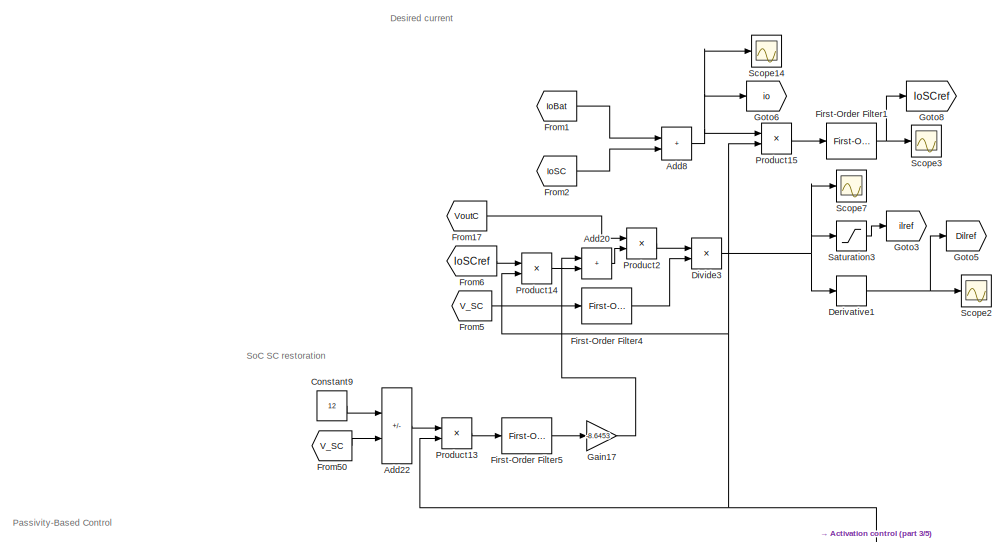
[diagram: root canvas - part 1/5, top center region]
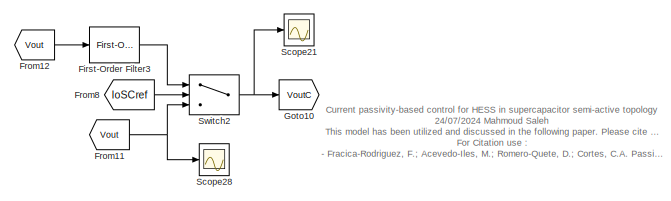
[diagram: root canvas - part 2/5, top right region]
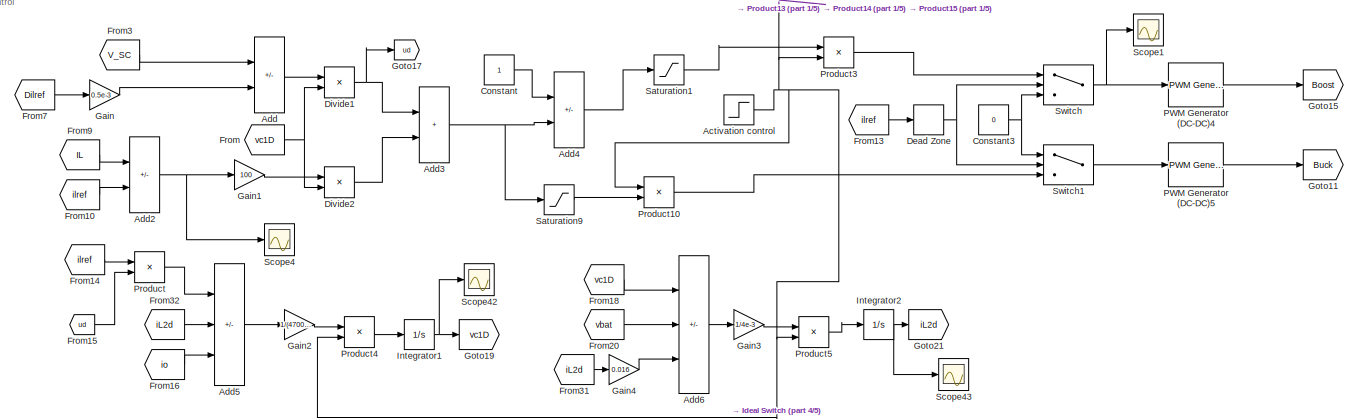
[diagram: root canvas - part 3/5, central region]
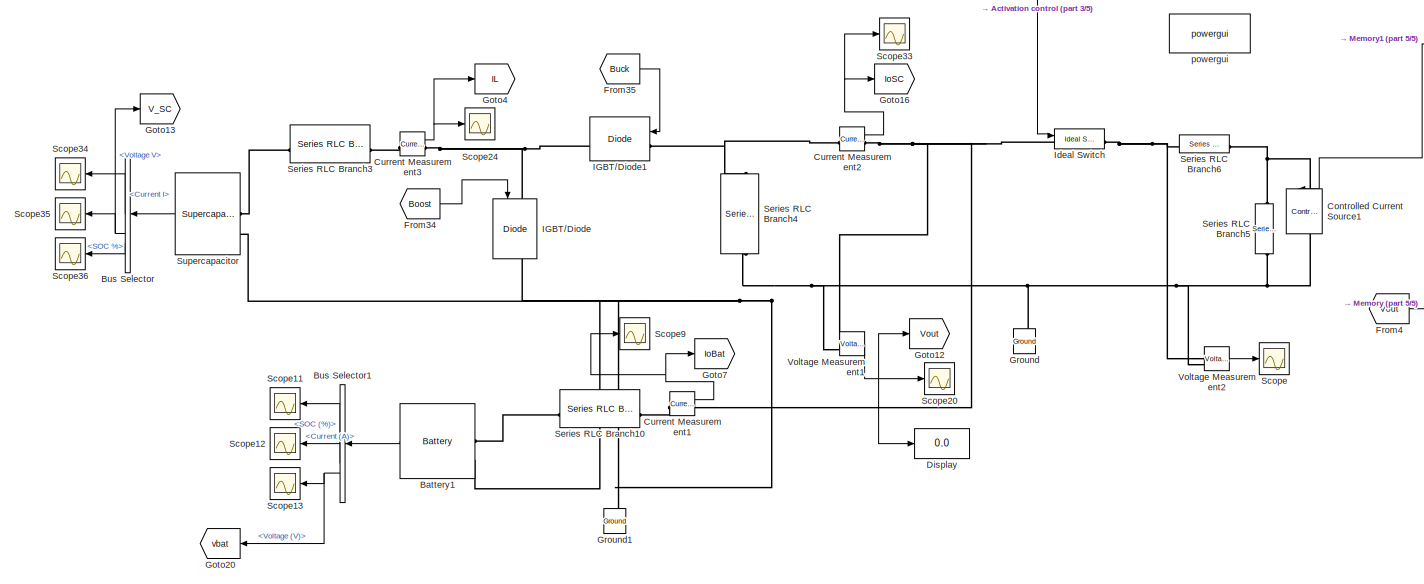
[diagram: root canvas - part 4/5, bottom center region]
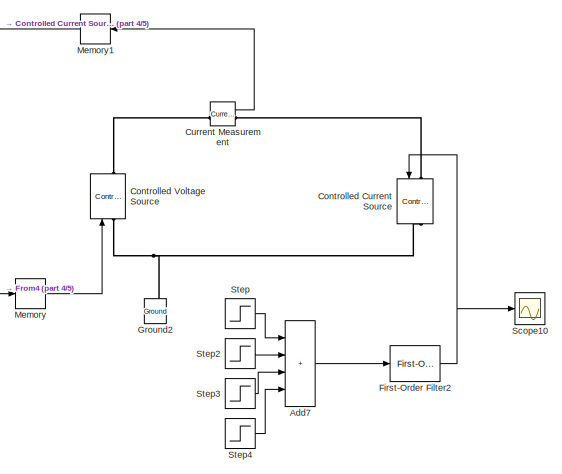
[diagram: root canvas - part 5/5, bottom right region]
MODEL slx_d5343354e432
KIND model
CONFIG AbsTol = auto
CONFIG EnableMultiTasking = off
CONFIG FixedStep = 1/350000
CONFIG MaxStep = auto
CONFIG MinStep = auto
CONFIG RelTol = 1e-3
CONFIG SampleTimeConstraint = Unconstrained
CONFIG SolverName = ode4
CONFIG StartTime = 0.0
CONFIG StopTime = 10.0
BLOCK [Step] Activation control
  SampleTime = 0
  Time = 3
BLOCK [Sum] Add
  IconShape = rectangular
  Inputs = +-
BLOCK [Sum] Add2
  IconShape = rectangular
  Inputs = +-
BLOCK [Sum] Add20
  IconShape = rectangular
BLOCK [Sum] Add22
  IconShape = rectangular
  Inputs = +-
BLOCK [Sum] Add3
  IconShape = rectangular
BLOCK [Sum] Add4
  IconShape = rectangular
  Inputs = +-
BLOCK [Sum] Add5
  IconShape = rectangular
  Inputs = +--
BLOCK [Sum] Add6
  IconShape = rectangular
  Inputs = +--
BLOCK [Sum] Add7
  IconShape = rectangular
  Inputs = ++++
BLOCK [Sum] Add8
  IconShape = rectangular
BLOCK [Reference] Battery1  REF=spsBatteryLib/Battery
  LibrarySourceBlock = sps_lib/Sources/Battery
  SourceBlock = spsBatteryLib/Battery
  SourceType = Battery
BLOCK [BusSelector] Bus Selector
  OutputSignals = Current I,Voltage V,SOC %
BLOCK [BusSelector] Bus Selector1
  OutputSignals = SOC (%),Current (A),Voltage (V)
BLOCK [Constant] Constant
BLOCK [Constant] Constant3
  Value = 0
BLOCK [Constant] Constant9
  Value = 12
BLOCK [Reference] Controlled Current Source  REF=spsControlledCurrentSourceLib/Controlled Current Source
  LibrarySourceBlock = sps_lib/Sources/Controlled Current Source
  SourceBlock = spsControlledCurrentSourceLib/Controlled Current Source
  SourceType = Controlled Current Source
BLOCK [Reference] Controlled Current Source1  REF=spsControlledCurrentSourceLib/Controlled Current Source
  LibrarySourceBlock = sps_lib/Sources/Controlled Current Source
  SourceBlock = spsControlledCurrentSourceLib/Controlled Current Source
  SourceType = Controlled Current Source
BLOCK [Reference] Controlled Voltage Source  REF=spsControlledVoltageSourceLib/Controlled Voltage Source
  LibrarySourceBlock = sps_lib/Sources/Controlled Voltage Source
  SourceBlock = spsControlledVoltageSourceLib/Controlled Voltage Source
  SourceType = Controlled Voltage Source
BLOCK [Reference] Current Measurement  REF=spsCurrentMeasurementLib/Current Measurement
  LibrarySourceBlock = sps_lib/Sensors and Measurements/Current Measurement
  SourceBlock = spsCurrentMeasurementLib/Current Measurement
  SourceType = Current Measurement
  UserDataPersistent = on
BLOCK [Reference] Current Measurement1  REF=spsCurrentMeasurementLib/Current Measurement
  LibrarySourceBlock = sps_lib/Sensors and Measurements/Current Measurement
  SourceBlock = spsCurrentMeasurementLib/Current Measurement
  SourceType = Current Measurement
  UserDataPersistent = on
BLOCK [Reference] Current Measurement2  REF=spsCurrentMeasurementLib/Current Measurement
  LibrarySourceBlock = sps_lib/Sensors and Measurements/Current Measurement
  SourceBlock = spsCurrentMeasurementLib/Current Measurement
  SourceType = Current Measurement
  UserDataPersistent = on
BLOCK [Reference] Current Measurement3  REF=spsCurrentMeasurementLib/Current Measurement
  LibrarySourceBlock = sps_lib/Sensors and Measurements/Current Measurement
  SourceBlock = spsCurrentMeasurementLib/Current Measurement
  SourceType = Current Measurement
  UserDataPersistent = on
BLOCK [DeadZone] Dead Zone
  LowerValue = -0.05
  UpperValue = 0.05
BLOCK [Derivative] Derivative1
BLOCK [Display] Display
  Decimation = 1
BLOCK [Product] Divide1
  Inputs = */
BLOCK [Product] Divide2
  Inputs = */
BLOCK [Product] Divide3
  Inputs = */
BLOCK [Reference] First-Order Filter1  REF=spsFirstOrderFilterLib/First-Order
Filter
  LibrarySourceBlock = sps_lib/Control/Filters/First-Order\nFilter
  SourceBlock = spsFirstOrderFilterLib/First-Order\nFilter
  SourceType = First-Order Filter
BLOCK [Reference] First-Order Filter2  REF=spsFirstOrderFilterLib/First-Order
Filter
  LibrarySourceBlock = sps_lib/Control/Filters/First-Order\nFilter
  SourceBlock = spsFirstOrderFilterLib/First-Order\nFilter
  SourceType = First-Order Filter
BLOCK [Reference] First-Order Filter3  REF=spsFirstOrderFilterLib/First-Order
Filter
  LibrarySourceBlock = sps_lib/Control/Filters/First-Order\nFilter
  SourceBlock = spsFirstOrderFilterLib/First-Order\nFilter
  SourceType = First-Order Filter
BLOCK [Reference] First-Order Filter4  REF=spsFirstOrderFilterLib/First-Order
Filter
  LibrarySourceBlock = sps_lib/Control/Filters/First-Order\nFilter
  SourceBlock = spsFirstOrderFilterLib/First-Order\nFilter
  SourceType = First-Order Filter
BLOCK [Reference] First-Order Filter5  REF=spsFirstOrderFilterLib/First-Order
Filter
  LibrarySourceBlock = sps_lib/Control/Filters/First-Order\nFilter
  SourceBlock = spsFirstOrderFilterLib/First-Order\nFilter
  SourceType = First-Order Filter
BLOCK [From] From
  GotoTag = vc1D
BLOCK [From] From1
  GotoTag = IoBat
BLOCK [From] From10
  GotoTag = ilref
BLOCK [From] From11
  GotoTag = Vout
BLOCK [From] From12
  GotoTag = Vout
BLOCK [From] From13
  GotoTag = ilref
BLOCK [From] From14
  GotoTag = ilref
BLOCK [From] From15
  GotoTag = ud
BLOCK [From] From16
  GotoTag = io
BLOCK [From] From17
  GotoTag = VoutC
BLOCK [From] From18
  GotoTag = vc1D
BLOCK [From] From2
  GotoTag = IoSC
BLOCK [From] From20
  GotoTag = vbat
BLOCK [From] From3
  GotoTag = V_SC
BLOCK [From] From31
  GotoTag = iL2d
BLOCK [From] From32
  GotoTag = iL2d
BLOCK [From] From34
  GotoTag = Boost
BLOCK [From] From35
  GotoTag = Buck
BLOCK [From] From4
  GotoTag = Vout
BLOCK [From] From5
  GotoTag = V_SC
BLOCK [From] From50
  GotoTag = V_SC
BLOCK [From] From6
  GotoTag = IoSCref
BLOCK [From] From7
  GotoTag = Dilref
BLOCK [From] From8
  GotoTag = IoSCref
BLOCK [From] From9
  GotoTag = IL
BLOCK [Gain] Gain
  Gain = 0.5e-3
BLOCK [Gain] Gain1
  Gain = 100
BLOCK [Gain] Gain17
  Gain = -8.6453
BLOCK [Gain] Gain2
  Gain = 1/(4700e-6)
BLOCK [Gain] Gain3
  Gain = 1/4e-3
BLOCK [Gain] Gain4
  Gain = 0.016
BLOCK [Goto] Goto10
  GotoTag = VoutC
BLOCK [Goto] Goto11
  GotoTag = Buck
BLOCK [Goto] Goto12
  GotoTag = Vout
BLOCK [Goto] Goto13
  GotoTag = V_SC
BLOCK [Goto] Goto15
  GotoTag = Boost
BLOCK [Goto] Goto16
  GotoTag = IoSC
BLOCK [Goto] Goto17
  GotoTag = ud
BLOCK [Goto] Goto19
  GotoTag = vc1D
BLOCK [Goto] Goto20
  GotoTag = vbat
BLOCK [Goto] Goto21
  GotoTag = iL2d
BLOCK [Goto] Goto3
  GotoTag = ilref
BLOCK [Goto] Goto4
  GotoTag = IL
BLOCK [Goto] Goto5
  GotoTag = Dilref
BLOCK [Goto] Goto6
  GotoTag = io
BLOCK [Goto] Goto7
  GotoTag = IoBat
BLOCK [Goto] Goto8
  GotoTag = IoSCref
BLOCK [Reference] Ground  REF=spsGroundLib/Ground
  LibrarySourceBlock = sps_lib/Utilities/Ground
  NameLocation = right
  SourceBlock = spsGroundLib/Ground
  SourceType = Ground
BLOCK [Reference] Ground1  REF=spsGroundLib/Ground
  LibrarySourceBlock = sps_lib/Utilities/Ground
  NameLocation = right
  SourceBlock = spsGroundLib/Ground
  SourceType = Ground
BLOCK [Reference] Ground2  REF=spsGroundLib/Ground
  LibrarySourceBlock = sps_lib/Utilities/Ground
  NameLocation = right
  SourceBlock = spsGroundLib/Ground
  SourceType = Ground
BLOCK [Reference] IGBT//Diode  REF=spsIGBTDiodeLib/IGBT//Diode
  LibrarySourceBlock = sps_lib/Power Electronics/IGBT//Diode
  NameLocation = left
  SourceBlock = spsIGBTDiodeLib/IGBT//Diode
  SourceType = IGBT/Diode
BLOCK [Reference] IGBT//Diode1  REF=spsIGBTDiodeLib/IGBT//Diode
  LibrarySourceBlock = sps_lib/Power Electronics/IGBT//Diode
  SourceBlock = spsIGBTDiodeLib/IGBT//Diode
  SourceType = IGBT/Diode
BLOCK [Reference] Ideal Switch  REF=spsIdealSwitchLib/Ideal Switch
  LibrarySourceBlock = sps_lib/Power Electronics/Ideal Switch
  SourceBlock = spsIdealSwitchLib/Ideal Switch
  SourceType = Ideal Switch
BLOCK [Integrator] Integrator1
  InitialCondition = 23.57
  LimitOutput = on
  LowerSaturationLimit = 19
  UpperSaturationLimit = 26
BLOCK [Integrator] Integrator2
  InitialCondition = 0.5
  LimitOutput = on
  LowerSaturationLimit = -30
  UpperSaturationLimit = 30
BLOCK [Memory] Memory
BLOCK [Memory] Memory1
BLOCK [Reference] PWM Generator (DC-DC)4  REF=spsPWMGeneratorDCDCLib/PWM Generator
(DC-DC)
  LibrarySourceBlock = sps_lib/Power Electronics/Power Electronics Control/PWM Generator\n(DC-DC)
  SourceBlock = spsPWMGeneratorDCDCLib/PWM Generator\n(DC-DC)
  SourceType = PWM Generator (DC-DC)
BLOCK [Reference] PWM Generator (DC-DC)5  REF=spsPWMGeneratorDCDCLib/PWM Generator
(DC-DC)
  LibrarySourceBlock = sps_lib/Power Electronics/Power Electronics Control/PWM Generator\n(DC-DC)
  SourceBlock = spsPWMGeneratorDCDCLib/PWM Generator\n(DC-DC)
  SourceType = PWM Generator (DC-DC)
BLOCK [Product] Product
BLOCK [Product] Product10
BLOCK [Product] Product13
BLOCK [Product] Product14
BLOCK [Product] Product15
BLOCK [Product] Product2
BLOCK [Product] Product3
BLOCK [Product] Product4
BLOCK [Product] Product5
BLOCK [Saturate] Saturation1
  LowerLimit = 0
  UpperLimit = 1
BLOCK [Saturate] Saturation3
  LowerLimit = -50
  UpperLimit = 50
BLOCK [Saturate] Saturation9
  LowerLimit = 0
  UpperLimit = 1
BLOCK [Scope] Scope
  Floating = off
  NumInputPorts = 1
  ScopeSpecificationString = Simulink.scopes.TimeScopeBlockCfg('CurrentConfiguration', extmgr.ConfigurationSet(extmgr.Configuration('Core','General UI',true),extmgr.Configuration('Core','Source UI',true),extmgr.Configuration('Sources','WiredSimulink',true,'DataLoggingVariableName','ScopeData1'),extmgr.Configuration('Visuals','Time Domain',true,'SerializedDisplays',{struct('MinYLimReal','-306819.7894','MaxYLimReal','34126.4889...<+1430ch>
BLOCK [Scope] Scope1
  Floating = off
  NumInputPorts = 1
  ScopeSpecificationString = Simulink.scopes.TimeScopeBlockCfg('CurrentConfiguration', extmgr.ConfigurationSet(extmgr.Configuration('Core','General UI',true),extmgr.Configuration('Core','Source UI',true),extmgr.Configuration('Sources','WiredSimulink',true,'DataLoggingVariableName','ScopeData2'),extmgr.Configuration('Visuals','Time Domain',true,'SerializedDisplays',{struct('MinYLimReal','-0.125','MaxYLimReal','1.125','YLabelRe...<+1407ch>
BLOCK [Scope] Scope10
  Floating = off
  NumInputPorts = 1
  ScopeSpecificationString = Simulink.scopes.TimeScopeBlockCfg('CurrentConfiguration', extmgr.ConfigurationSet(extmgr.Configuration('Core','General UI',true),extmgr.Configuration('Core','Source UI',true),extmgr.Configuration('Sources','WiredSimulink',true,'DataLoggingVariableName','ScopeData3'),extmgr.Configuration('Visuals','Time Domain',true,'SerializedDisplays',{struct('MinYLimReal','-0.89407','MaxYLimReal','16.88065','YLa...<+1420ch>
BLOCK [Scope] Scope11
  Floating = off
  NumInputPorts = 1
  ScopeSpecificationString = Simulink.scopes.TimeScopeBlockCfg('CurrentConfiguration', extmgr.ConfigurationSet(extmgr.Configuration('Core','General UI',true),extmgr.Configuration('Core','Source UI',true),extmgr.Configuration('Sources','WiredSimulink',true,'DataLoggingVariableName','ScopeData4'),extmgr.Configuration('Visuals','Time Domain',true,'SerializedDisplays',{struct('MinYLimReal','39.81805','MaxYLimReal','40.02022','YLa...<+1374ch>
BLOCK [Scope] Scope12
  Floating = off
  NumInputPorts = 1
  ScopeSpecificationString = Simulink.scopes.TimeScopeBlockCfg('CurrentConfiguration', extmgr.ConfigurationSet(extmgr.Configuration('Core','General UI',true),extmgr.Configuration('Core','Source UI',true),extmgr.Configuration('Sources','WiredSimulink',true,'DataLoggingVariableName','ScopeData5'),extmgr.Configuration('Visuals','Time Domain',true,'SerializedDisplays',{struct('MinYLimReal','-3.39157','MaxYLimReal','4.05584','YLab...<+1445ch>
BLOCK [Scope] Scope13
  Floating = off
  NumInputPorts = 1
  ScopeSpecificationString = Simulink.scopes.TimeScopeBlockCfg('CurrentConfiguration', extmgr.ConfigurationSet(extmgr.Configuration('Core','General UI',true),extmgr.Configuration('Core','Source UI',true),extmgr.Configuration('Sources','WiredSimulink',true,'DataLoggingVariableName','ScopeData6'),extmgr.Configuration('Visuals','Time Domain',true,'SerializedDisplays',{struct('MinYLimReal','23.26395','MaxYLimReal','26.36579','YLa...<+1451ch>
BLOCK [Scope] Scope14
  Floating = off
  NumInputPorts = 1
  ScopeSpecificationString = Simulink.scopes.TimeScopeBlockCfg('CurrentConfiguration', extmgr.ConfigurationSet(extmgr.Configuration('Core','General UI',true),extmgr.Configuration('Core','Source UI',true),extmgr.Configuration('Sources','WiredSimulink',true,'DataLoggingVariableName','ScopeData7'),extmgr.Configuration('Visuals','Time Domain',true,'SerializedDisplays',{struct('MinYLimReal','-1.88819','MaxYLimReal','16.99372','YLa...<+1421ch>
BLOCK [Scope] Scope2
  Floating = off
  NumInputPorts = 1
  ScopeSpecificationString = Simulink.scopes.TimeScopeBlockCfg('CurrentConfiguration', extmgr.ConfigurationSet(extmgr.Configuration('Core','General UI',true),extmgr.Configuration('Core','Source UI',true),extmgr.Configuration('Sources','WiredSimulink',true,'DataLoggingVariableName','ScopeData8'),extmgr.Configuration('Visuals','Time Domain',true,'SerializedDisplays',{struct('MinYLimReal','-12.5','MaxYLimReal','12.5','YLabelReal...<+1397ch>
BLOCK [Scope] Scope20
  Floating = off
  NumInputPorts = 1
  ScopeSpecificationString = Simulink.scopes.TimeScopeBlockCfg('CurrentConfiguration', extmgr.ConfigurationSet(extmgr.Configuration('Core','General UI',true),extmgr.Configuration('Core','Source UI',true),extmgr.Configuration('Sources','WiredSimulink',true,'DataLoggingVariableName','ScopeData9'),extmgr.Configuration('Visuals','Time Domain',true,'SerializedDisplays',{struct('MinYLimReal','1.5951','MaxYLimReal','43.15287','YLabe...<+1450ch>
BLOCK [Scope] Scope21
  Floating = off
  NumInputPorts = 1
  ScopeSpecificationString = Simulink.scopes.TimeScopeBlockCfg('CurrentConfiguration', extmgr.ConfigurationSet(extmgr.Configuration('Core','General UI',true),extmgr.Configuration('Core','Source UI',true),extmgr.Configuration('Sources','WiredSimulink',true,'DataLoggingVariableName','ScopeData10'),extmgr.Configuration('Visuals','Time Domain',true,'SerializedDisplays',{struct('MinYLimReal','20.58247','MaxYLimReal','26.60205','YL...<+1452ch>
BLOCK [Scope] Scope24
  Floating = off
  NumInputPorts = 1
  ScopeSpecificationString = Simulink.scopes.TimeScopeBlockCfg('CurrentConfiguration', extmgr.ConfigurationSet(extmgr.Configuration('Core','General UI',true),extmgr.Configuration('Core','Source UI',true),extmgr.Configuration('Sources','WiredSimulink',true,'DataLoggingVariableName','ScopeData11'),extmgr.Configuration('Visuals','Time Domain',true,'SerializedDisplays',{struct('MinYLimReal','-45.1833','MaxYLimReal','37.76069','YL...<+1455ch>
BLOCK [Scope] Scope28
  Floating = off
  NumInputPorts = 1
  ScopeSpecificationString = Simulink.scopes.TimeScopeBlockCfg('CurrentConfiguration', extmgr.ConfigurationSet(extmgr.Configuration('Core','General UI',true),extmgr.Configuration('Core','Source UI',true),extmgr.Configuration('Sources','WiredSimulink',true,'DataLoggingVariableName','ScopeData12'),extmgr.Configuration('Visuals','Time Domain',true,'SerializedDisplays',{struct('MinYLimReal','-3.24427','MaxYLimReal','29.19847','YL...<+1428ch>
BLOCK [Scope] Scope3
  Floating = off
  NumInputPorts = 1
  ScopeSpecificationString = Simulink.scopes.TimeScopeBlockCfg('CurrentConfiguration', extmgr.ConfigurationSet(extmgr.Configuration('Core','General UI',true),extmgr.Configuration('Core','Source UI',true),extmgr.Configuration('Sources','WiredSimulink',true,'DataLoggingVariableName','ScopeData13'),extmgr.Configuration('Visuals','Time Domain',true,'SerializedDisplays',{struct('MinYLimReal','-1.14399','MaxYLimReal','5.85102','YLa...<+1423ch>
BLOCK [Scope] Scope33
  Floating = off
  NumInputPorts = 1
  ScopeSpecificationString = Simulink.scopes.TimeScopeBlockCfg('CurrentConfiguration', extmgr.ConfigurationSet(extmgr.Configuration('Core','General UI',true),extmgr.Configuration('Core','Source UI',true),extmgr.Configuration('Sources','WiredSimulink',true,'DataLoggingVariableName','ScopeData14'),extmgr.Configuration('Visuals','Time Domain',true,'SerializedDisplays',{struct('MinYLimReal','-24.41279','MaxYLimReal','17.93833','Y...<+1459ch>
BLOCK [Scope] Scope34
  Floating = off
  NumInputPorts = 1
  ScopeSpecificationString = Simulink.scopes.TimeScopeBlockCfg('CurrentConfiguration', extmgr.ConfigurationSet(extmgr.Configuration('Core','General UI',true),extmgr.Configuration('Core','Source UI',true),extmgr.Configuration('Sources','WiredSimulink',true,'DataLoggingVariableName','ScopeData15'),extmgr.Configuration('Visuals','Time Domain',true,'SerializedDisplays',{struct('MinYLimReal','-1.57217','MaxYLimReal','2.85835','YLa...<+1415ch>
BLOCK [Scope] Scope35
  Floating = off
  NumInputPorts = 1
  ScopeSpecificationString = Simulink.scopes.TimeScopeBlockCfg('CurrentConfiguration', extmgr.ConfigurationSet(extmgr.Configuration('Core','General UI',true),extmgr.Configuration('Core','Source UI',true),extmgr.Configuration('Sources','WiredSimulink',true,'DataLoggingVariableName','ScopeData16'),extmgr.Configuration('Visuals','Time Domain',true,'SerializedDisplays',{struct('MinYLimReal','11.30226','MaxYLimReal','12.16329','YL...<+1450ch>
BLOCK [Scope] Scope36
  Floating = off
  NumInputPorts = 1
  ScopeSpecificationString = Simulink.scopes.TimeScopeBlockCfg('CurrentConfiguration', extmgr.ConfigurationSet(extmgr.Configuration('Core','General UI',true),extmgr.Configuration('Core','Source UI',true),extmgr.Configuration('Sources','WiredSimulink',true,'DataLoggingVariableName','ScopeData17'),extmgr.Configuration('Visuals','Time Domain',true,'SerializedDisplays',{struct('MinYLimReal','64.02967','MaxYLimReal','67.94576','YL...<+1392ch>
BLOCK [Scope] Scope4
  Floating = off
  NumInputPorts = 1
  ScopeSpecificationString = Simulink.scopes.TimeScopeBlockCfg('CurrentConfiguration', extmgr.ConfigurationSet(extmgr.Configuration('Core','General UI',true),extmgr.Configuration('Core','Source UI',true),extmgr.Configuration('Sources','WiredSimulink',true,'DataLoggingVariableName','ScopeData18'),extmgr.Configuration('Visuals','Time Domain',true,'SerializedDisplays',{struct('MinYLimReal','-0.44484','MaxYLimReal','0.81248','YLa...<+1383ch>
BLOCK [Scope] Scope42
  Floating = off
  NumInputPorts = 1
  ScopeSpecificationString = Simulink.scopes.TimeScopeBlockCfg('CurrentConfiguration', extmgr.ConfigurationSet(extmgr.Configuration('Core','General UI',true),extmgr.Configuration('Core','Source UI',true),extmgr.Configuration('Sources','WiredSimulink',true,'DataLoggingVariableName','ScopeData19'),extmgr.Configuration('Visuals','Time Domain',true,'SerializedDisplays',{struct('MinYLimReal','21.71211','MaxYLimReal','25.35272','YL...<+1377ch>
BLOCK [Scope] Scope43
  Floating = off
  NumInputPorts = 1
  ScopeSpecificationString = Simulink.scopes.TimeScopeBlockCfg('CurrentConfiguration', extmgr.ConfigurationSet(extmgr.Configuration('Core','General UI',true),extmgr.Configuration('Core','Source UI',true),extmgr.Configuration('Sources','WiredSimulink',true,'DataLoggingVariableName','ScopeData20'),extmgr.Configuration('Visuals','Time Domain',true,'SerializedDisplays',{struct('MinYLimReal','0.4','MaxYLimReal','0.6','YLabelReal',...<+1362ch>
BLOCK [Scope] Scope7
  Floating = off
  NumInputPorts = 1
  ScopeSpecificationString = Simulink.scopes.TimeScopeBlockCfg('CurrentConfiguration', extmgr.ConfigurationSet(extmgr.Configuration('Core','General UI',true),extmgr.Configuration('Core','Source UI',true),extmgr.Configuration('Sources','WiredSimulink',true,'DataLoggingVariableName','ScopeData21'),extmgr.Configuration('Visuals','Time Domain',true,'SerializedDisplays',{struct('MinYLimReal','-50.98948','MaxYLimReal','40.19529','Y...<+1446ch>
BLOCK [Scope] Scope9
  Floating = off
  NumInputPorts = 1
  ScopeSpecificationString = Simulink.scopes.TimeScopeBlockCfg('CurrentConfiguration', extmgr.ConfigurationSet(extmgr.Configuration('Core','General UI',true),extmgr.Configuration('Core','Source UI',true),extmgr.Configuration('Sources','WiredSimulink',true),extmgr.Configuration('Visuals','Time Domain',true,'SerializedDisplays',{struct('MinYLimReal','-27.21812','MaxYLimReal','21.13895','YLabelReal','','MinYLimMag','0.00000','Ma...<+1419ch>
BLOCK [Reference] Series RLC Branch10  REF=spsSeriesRLCBranchLib/Series RLC Branch
  LibrarySourceBlock = sps_lib/Passives/Series RLC Branch
  NameLocation = top
  SourceBlock = spsSeriesRLCBranchLib/Series RLC Branch
  SourceType = Series RLC Branch
BLOCK [Reference] Series RLC Branch3  REF=spsSeriesRLCBranchLib/Series RLC Branch
  LibrarySourceBlock = sps_lib/Passives/Series RLC Branch
  SourceBlock = spsSeriesRLCBranchLib/Series RLC Branch
  SourceType = Series RLC Branch
BLOCK [Reference] Series RLC Branch4  REF=spsSeriesRLCBranchLib/Series RLC Branch
  LibrarySourceBlock = sps_lib/Passives/Series RLC Branch
  NameLocation = left
  SourceBlock = spsSeriesRLCBranchLib/Series RLC Branch
  SourceType = Series RLC Branch
BLOCK [Reference] Series RLC Branch5  REF=spsSeriesRLCBranchLib/Series RLC Branch
  LibrarySourceBlock = sps_lib/Passives/Series RLC Branch
  NameLocation = left
  SourceBlock = spsSeriesRLCBranchLib/Series RLC Branch
  SourceType = Series RLC Branch
BLOCK [Reference] Series RLC Branch6  REF=spsSeriesRLCBranchLib/Series RLC Branch
  LibrarySourceBlock = sps_lib/Passives/Series RLC Branch
  SourceBlock = spsSeriesRLCBranchLib/Series RLC Branch
  SourceType = Series RLC Branch
BLOCK [Step] Step
  After = 15
  Before = 1
  SampleTime = 0
  Time = 10
BLOCK [Step] Step2
  After = -10
  SampleTime = 0
  Time = 30
BLOCK [Step] Step3
  After = -20
  SampleTime = 0
  Time = 50
BLOCK [Step] Step4
  After = 15
  SampleTime = 0
  Time = 70
BLOCK [Reference] Supercapacitor  REF=spsSupercapacitorLib/Supercapacitor
  LibrarySourceBlock = sps_lib/Sources/Supercapacitor
  SourceBlock = spsSupercapacitorLib/Supercapacitor
  SourceType = Supercapacitor
BLOCK [Switch] Switch
  InputSameDT = off
  SaturateOnIntegerOverflow = off
BLOCK [Switch] Switch1
  InputSameDT = off
  SaturateOnIntegerOverflow = off
BLOCK [Switch] Switch2
  InputSameDT = off
  SaturateOnIntegerOverflow = off
BLOCK [Reference] Voltage Measurement1  REF=spsVoltageMeasurementLib/Voltage Measurement
  LibrarySourceBlock = sps_lib/Sensors and Measurements/Voltage Measurement
  SourceBlock = spsVoltageMeasurementLib/Voltage Measurement
  SourceType = Voltage Measurement
  UserDataPersistent = on
BLOCK [Reference] Voltage Measurement2  REF=spsVoltageMeasurementLib/Voltage Measurement
  LibrarySourceBlock = sps_lib/Sensors and Measurements/Voltage Measurement
  SourceBlock = spsVoltageMeasurementLib/Voltage Measurement
  SourceType = Voltage Measurement
  UserDataPersistent = on
BLOCK [Reference] powergui  REF=spspowerguiLib/powergui
  Priority = 1
  SourceBlock = spspowerguiLib/powergui
  SourceType = PSB option menu block
ANNOTATION (root): Current passivity-based control for HESS in supercapacitor semi-active topology 24/07/2024 Mahmoud Saleh This model has been utilized and discussed in the following paper. Please cite it if you plan to use this model. For Citation use : - Fracica-Rodriguez, F.; Acevedo-Iles, M.; Romero-Quete, D.; Cortes, C.A. Passivity-Based Control for Transient Power Sharing and State of Charge Restoration in a ...<+97ch>
ANNOTATION (root): Desired current
ANNOTATION (root): Passivity-Based Control
ANNOTATION (root): SoC SC restoration
NET Activation control:1 -> Ideal Switch:1, Product10:1, Product13:2, Product14:2, Product15:2, Product3:2, Product4:2, Product5:2
LINE Add20:1 -> Product2:2
LINE Add22:1 -> Product13:1
NET Add2:1 -> Gain1:1, Scope4:1
NET Add3:1 -> Add4:2, Saturation9:1
LINE Add4:1 -> Saturation1:1
LINE Add5:1 -> Gain2:1
LINE Add6:1 -> Gain3:1
LINE Add7:1 -> First-Order Filter2:1
NET Add8:1 -> Goto6:1, Product15:1, Scope14:1
LINE Add:1 -> Divide1:1
LINE Battery1:1 -> Bus Selector1:1
LINE Bus Selector1:1 -> Scope11:1
LINE Bus Selector1:2 -> Scope12:1
NET Bus Selector1:3 -> Goto20:1, Scope13:1
LINE Bus Selector:1 -> Scope34:1
NET Bus Selector:2 -> Goto13:1, Scope35:1
LINE Bus Selector:3 -> Scope36:1
NET Constant3:1 -> Switch1:1, Switch:3
LINE Constant9:1 -> Add22:1
LINE Constant:1 -> Add4:1
NET Current Measurement1:1 -> Goto7:1, Scope9:1
NET Current Measurement2:1 -> Goto16:1, Scope33:1
NET Current Measurement3:1 -> Goto4:1, Scope24:1
LINE Current Measurement:1 -> Memory1:1
NET Dead Zone:1 -> Switch1:2, Switch:2
NET Derivative1:1 -> Goto5:1, Scope2:1
NET Divide1:1 -> Add3:1, Goto17:1
LINE Divide2:1 -> Add3:2
NET Divide3:1 -> Derivative1:1, Saturation3:1, Scope7:1
NET First-Order Filter1:1 -> Goto8:1, Scope3:1
NET First-Order Filter2:1 -> Controlled Current Source:1, Scope10:1
LINE First-Order Filter3:1 -> Switch2:1
LINE First-Order Filter4:1 -> Divide3:2
LINE First-Order Filter5:1 -> Gain17:1
LINE From10:1 -> Add2:2
NET From11:1 -> Scope28:1, Switch2:3
LINE From12:1 -> First-Order Filter3:1
LINE From13:1 -> Dead Zone:1
LINE From14:1 -> Product:1
LINE From15:1 -> Product:2
LINE From16:1 -> Add5:3
LINE From17:1 -> Product2:1
LINE From18:1 -> Add6:1
LINE From1:1 -> Add8:1
LINE From20:1 -> Add6:2
LINE From2:1 -> Add8:2
LINE From31:1 -> Gain4:1
LINE From32:1 -> Add5:2
LINE From34:1 -> IGBT//Diode:1
LINE From35:1 -> IGBT//Diode1:1
LINE From3:1 -> Add:1
LINE From4:1 -> Memory:1
LINE From50:1 -> Add22:2
LINE From5:1 -> First-Order Filter4:1
LINE From6:1 -> Product14:1
LINE From7:1 -> Gain:1
LINE From8:1 -> Switch2:2
LINE From9:1 -> Add2:1
NET From:1 -> Divide1:2, Divide2:2
LINE Gain17:1 -> Add20:1
LINE Gain1:1 -> Divide2:1
LINE Gain2:1 -> Product4:1
LINE Gain3:1 -> Product5:1
LINE Gain4:1 -> Add6:3
LINE Gain:1 -> Add:2
NET Integrator1:1 -> Goto19:1, Scope42:1
NET Integrator2:1 -> Goto21:1, Scope43:1
LINE Memory1:1 -> Controlled Current Source1:1
LINE Memory:1 -> Controlled Voltage Source:1
LINE PWM Generator (DC-DC)4:1 -> Goto15:1
LINE PWM Generator (DC-DC)5:1 -> Goto11:1
LINE Product10:1 -> Switch1:3
LINE Product13:1 -> First-Order Filter5:1
LINE Product14:1 -> Add20:2
LINE Product15:1 -> First-Order Filter1:1
LINE Product2:1 -> Divide3:1
LINE Product3:1 -> Switch:1
LINE Product4:1 -> Integrator1:1
LINE Product5:1 -> Integrator2:1
LINE Product:1 -> Add5:1
LINE Saturation1:1 -> Product3:1
LINE Saturation3:1 -> Goto3:1
LINE Saturation9:1 -> Product10:2
LINE Step2:1 -> Add7:2
LINE Step3:1 -> Add7:3
LINE Step4:1 -> Add7:4
LINE Step:1 -> Add7:1
LINE Supercapacitor:1 -> Bus Selector:1
LINE Switch1:1 -> PWM Generator (DC-DC)5:1
NET Switch2:1 -> Goto10:1, Scope21:1
NET Switch:1 -> PWM Generator (DC-DC)4:1, Scope1:1
NET Voltage Measurement1:1 -> Display:1, Goto12:1, Scope20:1
LINE Voltage Measurement2:1 -> Scope:1
PLINE Battery1:LConn1 -- Series RLC Branch10:LConn1
PNET net1: Battery1:LConn2 -- Controlled Current Source1:RConn1 -- Ground1:LConn1 -- Ground:LConn1 -- IGBT//Diode:RConn1 -- Series RLC Branch4:RConn1 -- Series RLC Branch5:RConn1 -- Supercapacitor:LConn2 -- Voltage Measurement1:LConn2 -- Voltage Measurement2:LConn2
PNET net2: Controlled Current Source1:LConn1 -- Series RLC Branch5:LConn1 -- Series RLC Branch6:RConn1
PLINE Controlled Current Source:LConn1 -- Current Measurement:RConn1
PNET net3: Controlled Current Source:RConn1 -- Controlled Voltage Source:LConn1 -- Ground2:LConn1
PLINE Controlled Voltage Source:RConn1 -- Current Measurement:LConn1
PLINE Current Measurement1:LConn1 -- Series RLC Branch10:RConn1
PNET net4: Current Measurement1:RConn1 -- Current Measurement2:RConn1 -- Ideal Switch:LConn1 -- Voltage Measurement1:LConn1
PNET net5: Current Measurement2:LConn1 -- IGBT//Diode1:LConn1 -- Series RLC Branch4:LConn1
PLINE Current Measurement3:LConn1 -- Series RLC Branch3:RConn1
PNET net6: Current Measurement3:RConn1 -- IGBT//Diode1:RConn1 -- IGBT//Diode:LConn1
PNET net7: Ideal Switch:RConn1 -- Series RLC Branch6:LConn1 -- Voltage Measurement2:LConn1
PLINE Series RLC Branch3:LConn1 -- Supercapacitor:LConn1
note: NET lines group one-source signal fan-out (src -> all destinations, sorted); 1:1 wires keep LINE; PNET lines group multi-terminal physical nets as a canonical sorted terminal list (undirected conserving connections); 2-terminal nets keep the pairwise PLINE form
